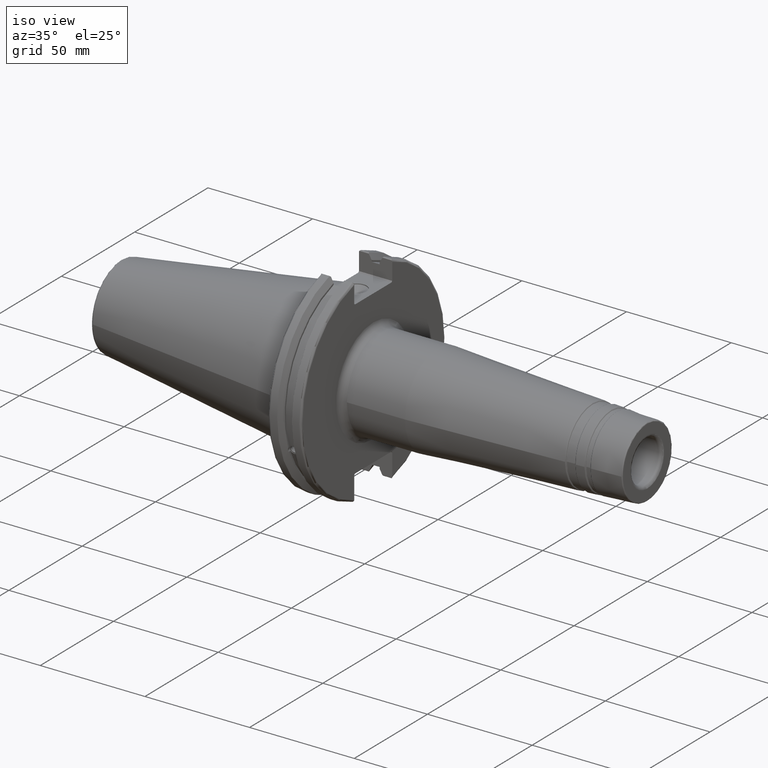
[diagram: clean part render]
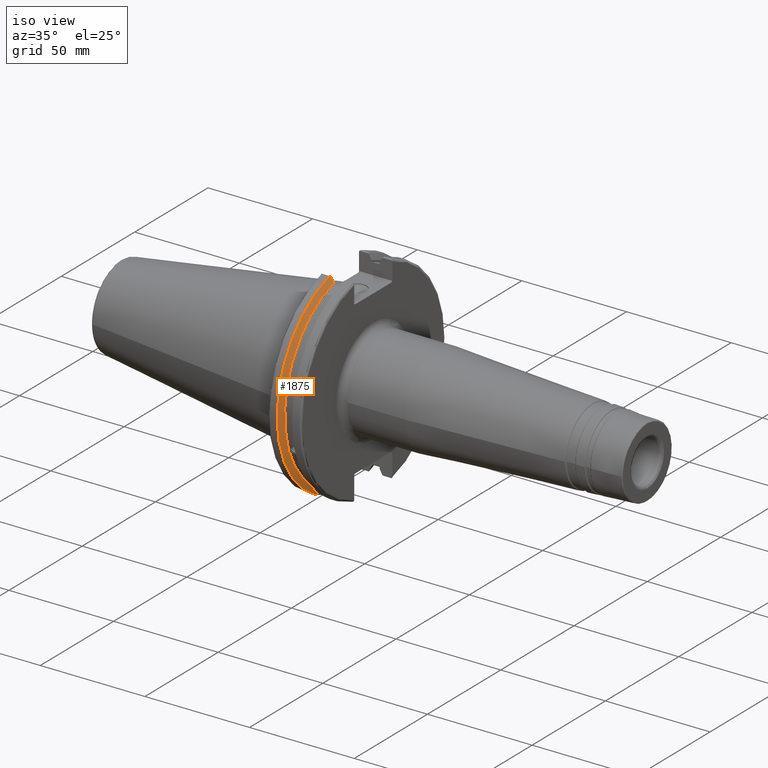
[diagram: same view with one face highlighted and labeled with its STEP entity id]
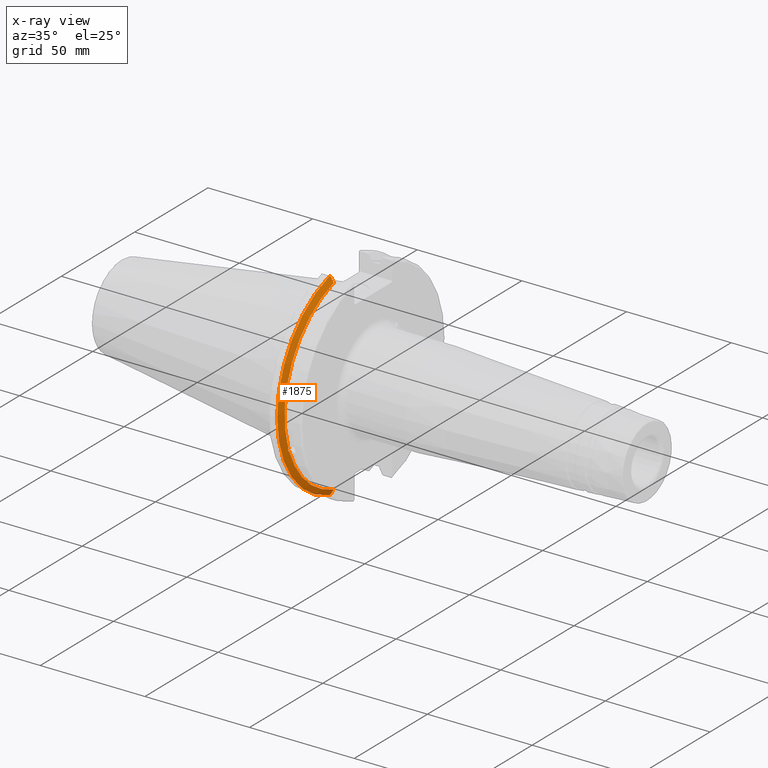
[diagram: x-ray of the same camera — body ghosted, the highlighted face saturated]
A machine part, iso view. The second image highlights one B-rep face of the part: STEP entity #1875.
The next image is the same camera in x-ray: the body ghosted, the highlighted face saturated — about 0% of this face is hidden behind the body in this view.
In plain terms, the highlighted conical surface has half-angle 60 deg.
Its self-contained STEP definition (entity closure, byte-faithful):
#25=(
BOUNDED_CURVE()
B_SPLINE_CURVE(2,(#3557,#3558,#3559),.UNSPECIFIED.,.F.,.F.)
B_SPLINE_CURVE_WITH_KNOTS((3,3),(0.,0.275823910674601),.UNSPECIFIED.)
CURVE()
GEOMETRIC_REPRESENTATION_ITEM()
RATIONAL_B_SPLINE_CURVE((1.,1.00038235573593,1.00012873636487))
REPRESENTATION_ITEM('')
);
#26=(
BOUNDED_CURVE()
B_SPLINE_CURVE(2,(#3569,#3570,#3571),.UNSPECIFIED.,.F.,.F.)
B_SPLINE_CURVE_WITH_KNOTS((3,3),(0.0558332664507492,0.331657177124507),
 .UNSPECIFIED.)
CURVE()
GEOMETRIC_REPRESENTATION_ITEM()
RATIONAL_B_SPLINE_CURVE((1.00012873636807,1.00038235574544,1.))
REPRESENTATION_ITEM('')
);
#27=(
BOUNDED_CURVE()
B_SPLINE_CURVE(2,(#3604,#3605,#3606),.UNSPECIFIED.,.F.,.F.)
B_SPLINE_CURVE_WITH_KNOTS((3,3),(0.,0.0648240472897372),.UNSPECIFIED.)
CURVE()
GEOMETRIC_REPRESENTATION_ITEM()
RATIONAL_B_SPLINE_CURVE((1.,1.00011477674836,1.00019140645948))
REPRESENTATION_ITEM('')
);
#28=(
BOUNDED_CURVE()
B_SPLINE_CURVE(2,(#3612,#3613,#3614),.UNSPECIFIED.,.F.,.F.)
B_SPLINE_CURVE_WITH_KNOTS((3,3),(0.325260944932348,0.390084992222201),
 .UNSPECIFIED.)
CURVE()
GEOMETRIC_REPRESENTATION_ITEM()
RATIONAL_B_SPLINE_CURVE((1.00019140645916,1.00011477674817,1.))
REPRESENTATION_ITEM('')
);
#109=CONICAL_SURFACE('',#2123,47.8172386482472,1.0471975511966);
#140=B_SPLINE_CURVE_WITH_KNOTS('',3,(#3086,#3087,#3088,#3089,#3090,#3091,
#3092,#3093,#3094,#3095,#3096,#3097,#3098,#3099),.UNSPECIFIED.,.F.,.F.,
(4,2,2,2,2,2,4),(0.426712868358719,0.441644498666906,0.48031331322313,0.518982127779354,
0.557650942335578,0.596319756891801,0.611251387199988),.UNSPECIFIED.);
#269=FACE_OUTER_BOUND('',#394,.T.);
#394=EDGE_LOOP('',(#1726,#1727,#1728,#1729,#1730,#1731,#1732,#1733));
#678=CIRCLE('',#2022,46.4219772964944);
#704=CIRCLE('',#2077,49.2125);
#720=CIRCLE('',#2124,46.4219772964944);
#801=VERTEX_POINT('',#3083);
#802=VERTEX_POINT('',#3085);
#819=VERTEX_POINT('',#3175);
#881=VERTEX_POINT('',#3554);
#882=VERTEX_POINT('',#3556);
#885=VERTEX_POINT('',#3568);
#889=VERTEX_POINT('',#3602);
#890=VERTEX_POINT('',#3608);
#1017=EDGE_CURVE('',#802,#801,#140,.T.);
#1040=EDGE_CURVE('',#802,#819,#678,.T.);
#1126=EDGE_CURVE('',#882,#881,#25,.T.);
#1132=EDGE_CURVE('',#885,#819,#26,.T.);
#1140=EDGE_CURVE('',#889,#881,#27,.T.);
#1142=EDGE_CURVE('',#889,#890,#704,.T.);
#1143=EDGE_CURVE('',#885,#890,#28,.T.);
#1185=EDGE_CURVE('',#882,#801,#720,.T.);
#1726=ORIENTED_EDGE('',*,*,#1017,.T.);
#1727=ORIENTED_EDGE('',*,*,#1185,.F.);
#1728=ORIENTED_EDGE('',*,*,#1126,.T.);
#1729=ORIENTED_EDGE('',*,*,#1140,.F.);
#1730=ORIENTED_EDGE('',*,*,#1142,.T.);
#1731=ORIENTED_EDGE('',*,*,#1143,.F.);
#1732=ORIENTED_EDGE('',*,*,#1132,.T.);
#1733=ORIENTED_EDGE('',*,*,#1040,.F.);
#1875=ADVANCED_FACE('',(#269),#109,.T.);
#2022=AXIS2_PLACEMENT_3D('',#3176,#2409,#2410);
#2077=AXIS2_PLACEMENT_3D('',#3610,#2563,#2564);
#2123=AXIS2_PLACEMENT_3D('',#3726,#2676,#2677);
#2124=AXIS2_PLACEMENT_3D('',#3727,#2678,#2679);
#2409=DIRECTION('center_axis',(1.,0.,0.));
#2410=DIRECTION('ref_axis',(0.,0.,-1.));
#2563=DIRECTION('center_axis',(1.,0.,0.));
#2564=DIRECTION('ref_axis',(0.,0.,-1.));
#2676=DIRECTION('center_axis',(-1.,0.,0.));
#2677=DIRECTION('ref_axis',(0.,-1.,-1.22464679914735E-16));
#2678=DIRECTION('center_axis',(1.,0.,0.));
#2679=DIRECTION('ref_axis',(0.,0.,-1.));
#3083=CARTESIAN_POINT('',(9.2191,-43.9096390749305,-15.0646464421033));
#3085=CARTESIAN_POINT('',(9.2191,-43.3201030900029,-16.684383248648));
#3086=CARTESIAN_POINT('Ctrl Pts',(9.21910000000001,-43.3201030900029,-16.6843832486479));
#3087=CARTESIAN_POINT('Ctrl Pts',(9.20211843903392,-43.3613106941341,-16.6592273018006));
#3088=CARTESIAN_POINT('Ctrl Pts',(9.18608675403322,-43.4012416983557,-16.6326763251437));
#3089=CARTESIAN_POINT('Ctrl Pts',(9.13238673845037,-43.5391037343221,-16.5325130832406));
#3090=CARTESIAN_POINT('Ctrl Pts',(9.09621610663556,-43.6406982153491,-16.441180795372));
#3091=CARTESIAN_POINT('Ctrl Pts',(9.04690868251975,-43.8110833825827,-16.2291323464527));
#3092=CARTESIAN_POINT('Ctrl Pts',(9.0341,-43.8794096049168,-16.10796730316));
#3093=CARTESIAN_POINT('Ctrl Pts',(9.0341,-43.9675796948952,-15.8657219718732));
#3094=CARTESIAN_POINT('Ctrl Pts',(9.04690868251975,-43.9931221605126,-15.7289849146254));
#3095=CARTESIAN_POINT('Ctrl Pts',(9.09621610663556,-43.9989016655819,-15.4570249042867));
#3096=CARTESIAN_POINT('Ctrl Pts',(9.13238673845037,-43.9797830409458,-15.3217566390708));
#3097=CARTESIAN_POINT('Ctrl Pts',(9.18608675403322,-43.9385582852181,-15.1564111356409));
#3098=CARTESIAN_POINT('Ctrl Pts',(9.20211843903392,-43.9250360001461,-15.1104047527575));
#3099=CARTESIAN_POINT('Ctrl Pts',(9.2191,-43.9096390749305,-15.0646464421033));
#3175=CARTESIAN_POINT('',(9.2191,-12.95,-44.5791147973604));
#3176=CARTESIAN_POINT('Origin',(9.2191,0.,0.));
#3554=CARTESIAN_POINT('',(7.88638960562424,-12.95,46.9780755322918));
#3556=CARTESIAN_POINT('',(9.2191,-12.95,44.5791147973604));
#3557=CARTESIAN_POINT('Ctrl Pts',(9.2191,-12.95,44.5791147973604));
#3558=CARTESIAN_POINT('Ctrl Pts',(8.57020449055857,-12.95,45.7494966802148));
#3559=CARTESIAN_POINT('Ctrl Pts',(7.88638960562424,-12.95,46.9780755322918));
#3568=CARTESIAN_POINT('',(7.88638960562425,-12.95,-46.9780755322918));
#3569=CARTESIAN_POINT('Ctrl Pts',(7.88638960562425,-12.95,-46.9780755322918));
#3570=CARTESIAN_POINT('Ctrl Pts',(8.57020449054166,-12.95,-45.7494966802452));
#3571=CARTESIAN_POINT('Ctrl Pts',(9.2191,-12.95,-44.5791147973604));
#3602=CARTESIAN_POINT('',(7.60799096595127,-13.4317035994433,47.3440544806494));
#3604=CARTESIAN_POINT('Ctrl Pts',(7.60799096595126,-13.4317035994433,47.3440544806494));
#3605=CARTESIAN_POINT('Ctrl Pts',(7.7482689666382,-13.1896660169966,47.1601640966265));
#3606=CARTESIAN_POINT('Ctrl Pts',(7.88638960562424,-12.95,46.9780755322918));
#3608=CARTESIAN_POINT('',(7.60799096595127,-13.4317035994433,-47.3440544806494));
#3610=CARTESIAN_POINT('Origin',(7.60799096595127,0.,0.));
#3612=CARTESIAN_POINT('Ctrl Pts',(7.88638960562425,-12.95,-46.9780755322918));
#3613=CARTESIAN_POINT('Ctrl Pts',(7.74826896663813,-13.1896660169967,-47.1601640966265));
#3614=CARTESIAN_POINT('Ctrl Pts',(7.60799096595127,-13.4317035994434,-47.3440544806494));
#3726=CARTESIAN_POINT('Origin',(8.41354548297563,0.,0.));
#3727=CARTESIAN_POINT('Origin',(9.2191,0.,0.));